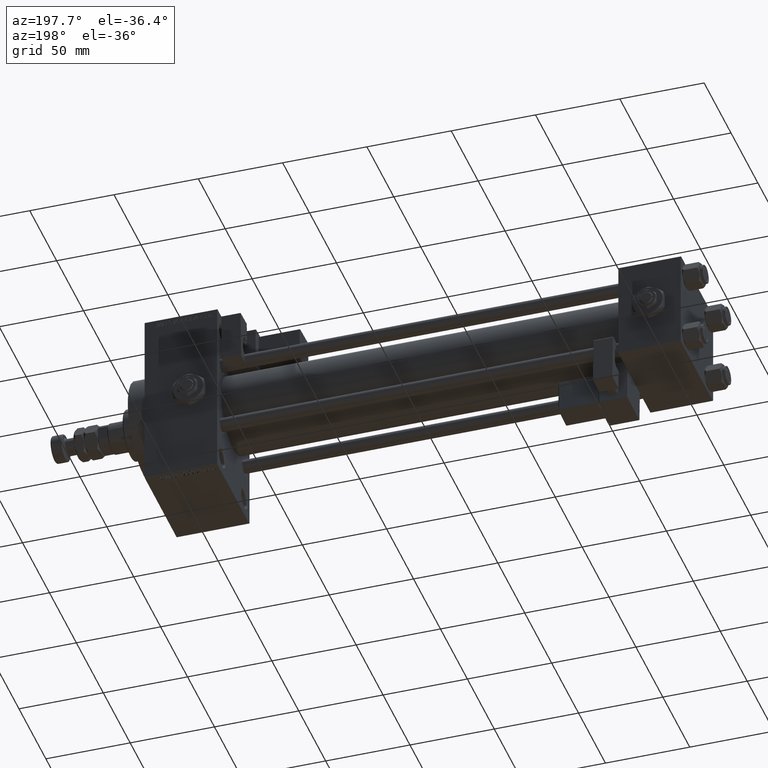
[diagram: clean part render]
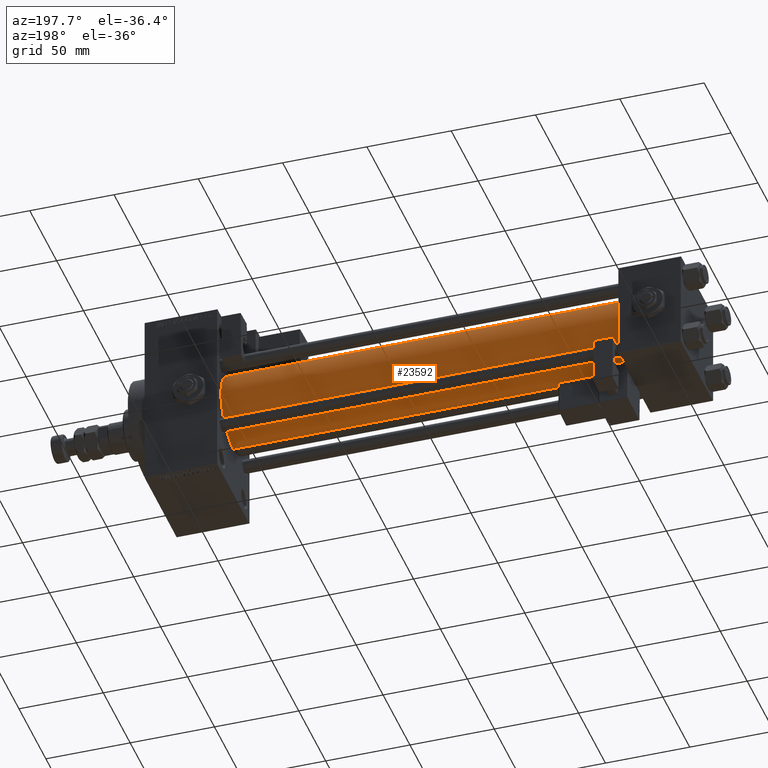
[diagram: same view with one face highlighted and labeled with its STEP entity id]
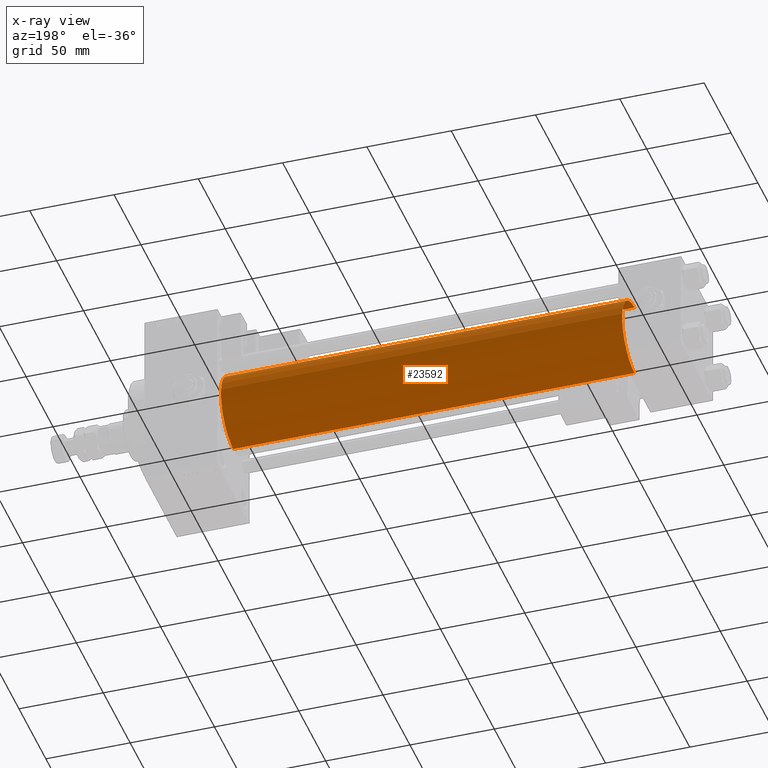
[diagram: x-ray of the same camera — body ghosted, the highlighted face saturated]
A machine part, auxiliary view. The second image highlights one B-rep face of the part: STEP entity #23592.
The next image is the same camera in x-ray: the body ghosted, the highlighted face saturated — about 0% of this face is hidden behind the body in this view.
In plain terms, the highlighted cylindrical surface (partial cylindrical patch) has radius 23 mm, axis along (-1, -0, -0).
Its self-contained STEP definition (entity closure, byte-faithful):
#2772 = VERTEX_POINT ( 'NONE', #33158 ) ;
#5218 = AXIS2_PLACEMENT_3D ( 'NONE', #17774, #12933, #37761 ) ;
#6636 = DIRECTION ( 'NONE',  ( -1.000000000000000000, -0.000000000000000000, -0.000000000000000000 ) ) ;
#6867 = EDGE_LOOP ( 'NONE', ( #36408, #9525, #45218, #43402 ) ) ;
#9525 = ORIENTED_EDGE ( 'NONE', *, *, #23288, .T. ) ;
#9716 = VERTEX_POINT ( 'NONE', #23869 ) ;
#9884 = CARTESIAN_POINT ( 'NONE',  ( 274.9999999999999432, -2.602085213965210642E-15, 23.00000000000000000 ) ) ;
#12933 = DIRECTION ( 'NONE',  ( 1.000000000000000000, -0.000000000000000000, 0.000000000000000000 ) ) ;
#13312 = DIRECTION ( 'NONE',  ( 0.000000000000000000, 0.000000000000000000, 1.000000000000000000 ) ) ;
#15553 = CIRCLE ( 'NONE', #5218, 23.00000000000000000 ) ;
#15852 = AXIS2_PLACEMENT_3D ( 'NONE', #38407, #26265, #13312 ) ;
#16911 = DIRECTION ( 'NONE',  ( 1.000000000000000000, 0.000000000000000000, 0.000000000000000000 ) ) ;
#17774 = CARTESIAN_POINT ( 'NONE',  ( 37.00000000000000711, -2.602085213965210642E-15, 0.000000000000000000 ) ) ;
#18415 = VECTOR ( 'NONE', #46590, 1000.000000000000000 ) ;
#18776 = LINE ( 'NONE', #9884, #18415 ) ;
#20688 = CARTESIAN_POINT ( 'NONE',  ( 274.9999999999999432, -2.602085213965210642E-15, 0.000000000000000000 ) ) ;
#20711 = AXIS2_PLACEMENT_3D ( 'NONE', #20688, #16911, #49577 ) ;
#21934 = CYLINDRICAL_SURFACE ( 'NONE', #15852, 23.00000000000000000 ) ;
#23162 = EDGE_CURVE ( 'NONE', #9716, #2772, #18776, .T. ) ;
#23288 = EDGE_CURVE ( 'NONE', #23941, #34142, #36045, .T. ) ;
#23381 = CARTESIAN_POINT ( 'NONE',  ( 274.9999999999999432, 2.146024240737016609E-16, -23.00000000000000000 ) ) ;
#23592 = ADVANCED_FACE ( 'NONE', ( #30305 ), #21934, .T. ) ;
#23869 = CARTESIAN_POINT ( 'NONE',  ( 274.9999999999999432, -2.602085213965210642E-15, 23.00000000000000000 ) ) ;
#23941 = VERTEX_POINT ( 'NONE', #32953 ) ;
#26265 = DIRECTION ( 'NONE',  ( -1.000000000000000000, -0.000000000000000000, -0.000000000000000000 ) ) ;
#30305 = FACE_OUTER_BOUND ( 'NONE', #6867, .T. ) ;
#32953 = CARTESIAN_POINT ( 'NONE',  ( 274.9999999999999432, 2.146024240737016609E-16, -23.00000000000000000 ) ) ;
#33158 = CARTESIAN_POINT ( 'NONE',  ( 37.00000000000000711, -2.602085213965210642E-15, 23.00000000000000000 ) ) ;
#34142 = VERTEX_POINT ( 'NONE', #48723 ) ;
#36045 = LINE ( 'NONE', #23381, #46010 ) ;
#36408 = ORIENTED_EDGE ( 'NONE', *, *, #47027, .F. ) ;
#37761 = DIRECTION ( 'NONE',  ( 0.000000000000000000, 0.000000000000000000, 1.000000000000000000 ) ) ;
#38407 = CARTESIAN_POINT ( 'NONE',  ( 274.9999999999999432, -2.602085213965210642E-15, 0.000000000000000000 ) ) ;
#43402 = ORIENTED_EDGE ( 'NONE', *, *, #23162, .F. ) ;
#45218 = ORIENTED_EDGE ( 'NONE', *, *, #46529, .T. ) ;
#46010 = VECTOR ( 'NONE', #6636, 1000.000000000000000 ) ;
#46529 = EDGE_CURVE ( 'NONE', #34142, #2772, #15553, .T. ) ;
#46590 = DIRECTION ( 'NONE',  ( -1.000000000000000000, -0.000000000000000000, -0.000000000000000000 ) ) ;
#47027 = EDGE_CURVE ( 'NONE', #23941, #9716, #51761, .T. ) ;
#48723 = CARTESIAN_POINT ( 'NONE',  ( 37.00000000000000711, 2.146024240737016609E-16, -23.00000000000000000 ) ) ;
#49577 = DIRECTION ( 'NONE',  ( 0.000000000000000000, 0.000000000000000000, -1.000000000000000000 ) ) ;
#51761 = CIRCLE ( 'NONE', #20711, 23.00000000000000000 ) ;